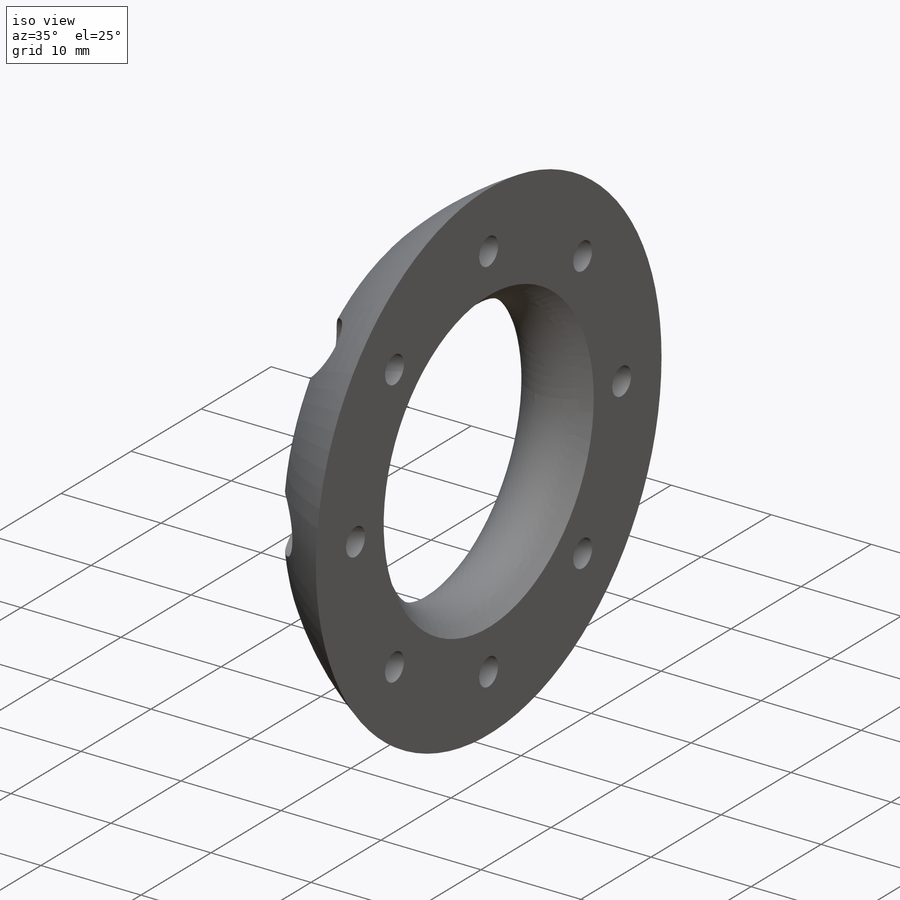
[diagram: iso view]
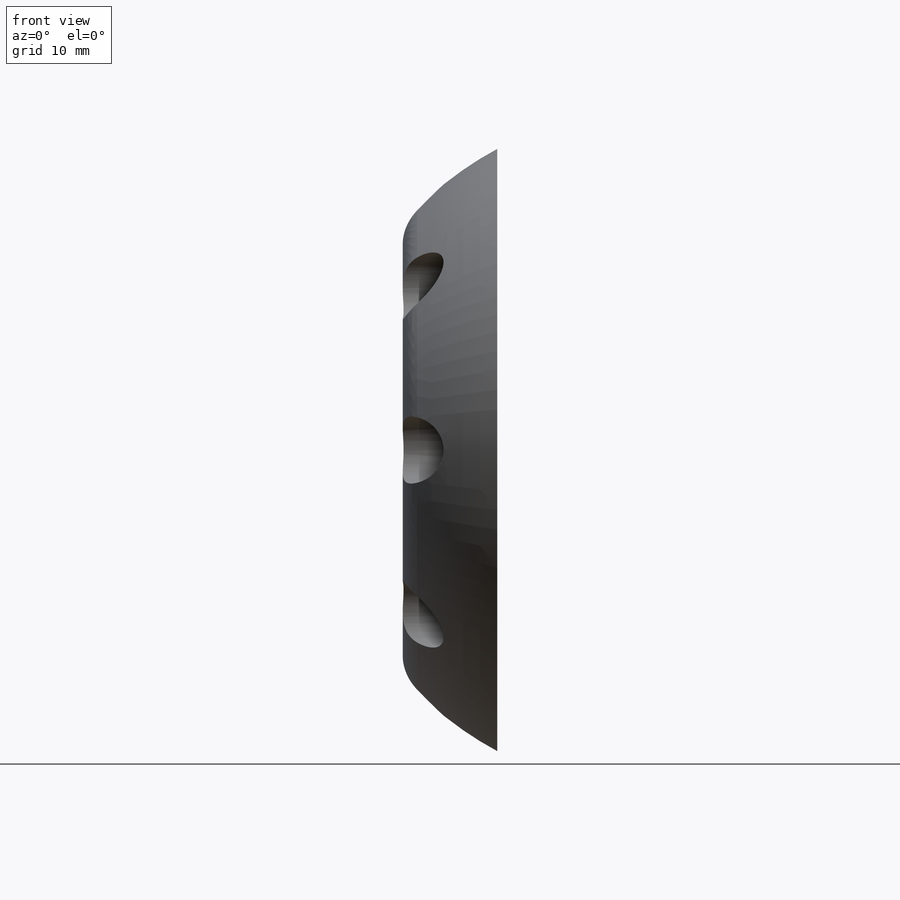
[diagram: front view]
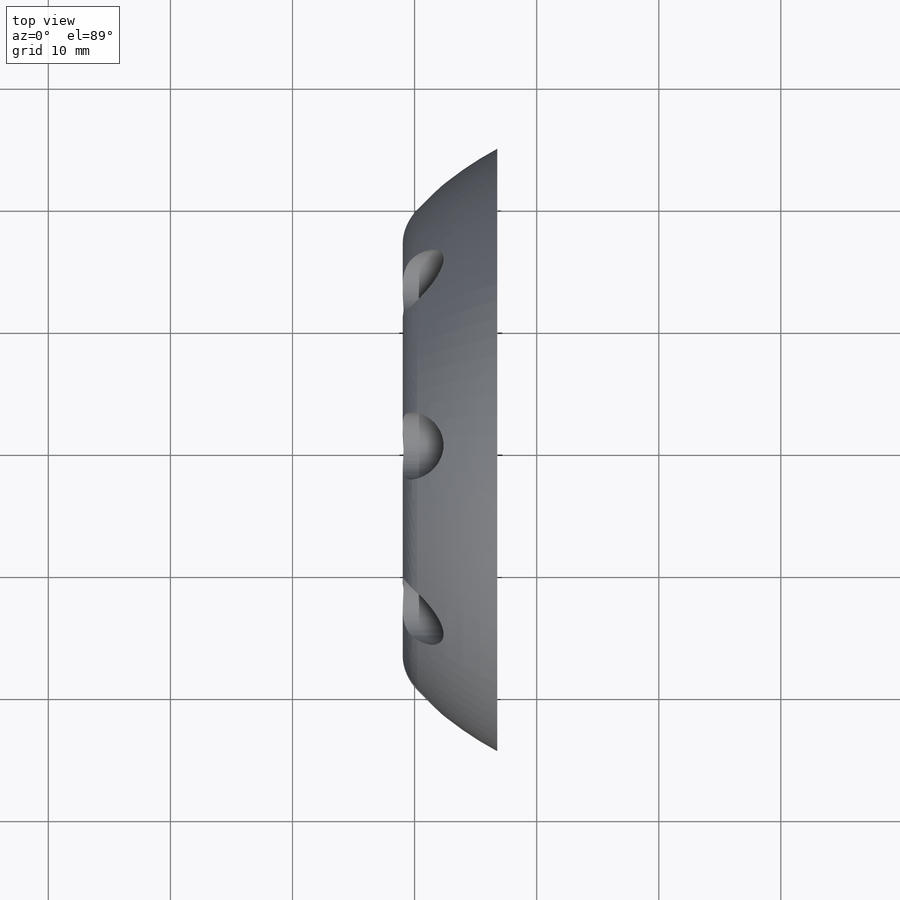
[diagram: top view]
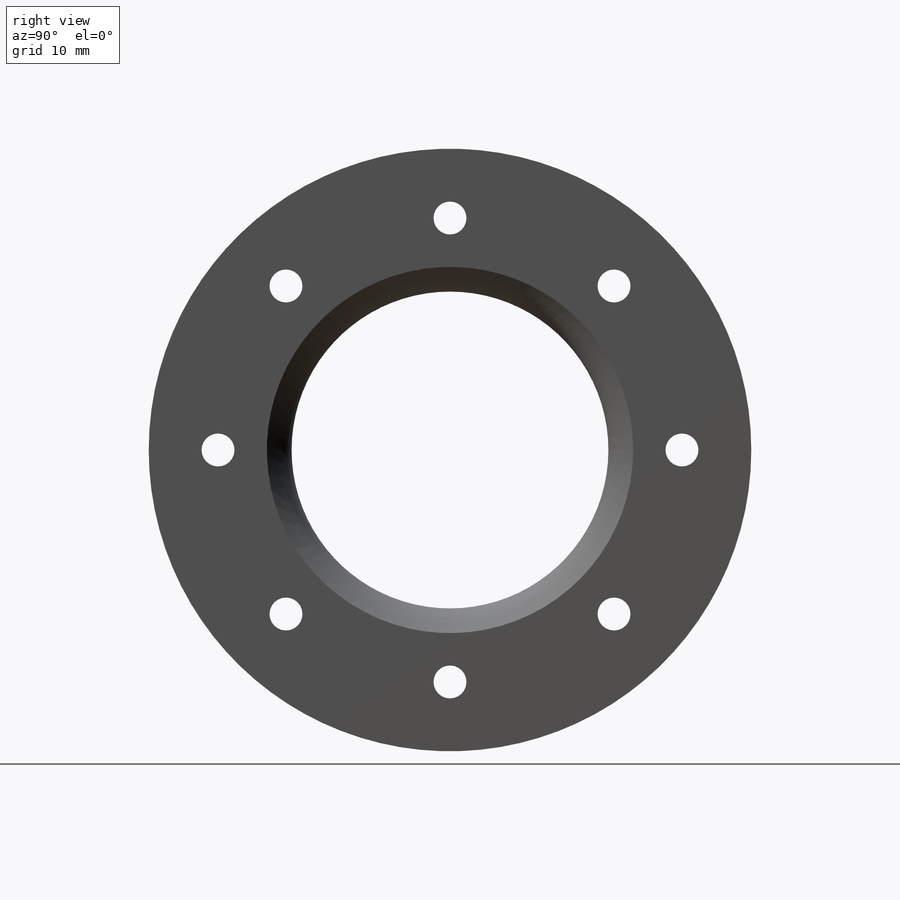
[diagram: right view]
SOLIDWORKS PART (.sldprt)
format: sldprt  version: not decoded by parser v0  size: 326,656 bytes
history: native  units: mm
features: plane x3, sketch x2, material x1, revolve x1, cut_revolve x1, pattern_circular x1 (+9 scaffold rows collapsed)
feature tree (18):
  scaffold x9  (default folders/planes/origin — collapsed)
  material  "Material <nicht festgelegt>"
  plane  "Vorne"
  plane  "Oben"
  plane  "Rechts"
  sketch  "Skizze1"  dims[c1.D2=20.0mm c1.D4=28.0mm c1.D1=~48.969976mm c2.D1=45.0deg c2.D3=15.0mm]
  revolve  "Rotation1"  Angle=360deg
  sketch  "Skizze2"  dims[c1.D1=~7.815027mm c2.D1=90.0deg c3.D1=19.0mm c3.D2=1.35mm c3.D3=2.75mm c3.D4=2.0mm c3.D5=8.0mm]
  cut_revolve  "Schnitt-Rotation1"  Angle=360deg
  pattern_circular  "Kreismuster1"  Count=8 Angle=360deg
decode coverage: 5 of 5 modeling features carry decoded parameters
note: ~ marks probable driven/reference dimensions
note: suppression state not decoded; provenance and decode notes live in map.json
